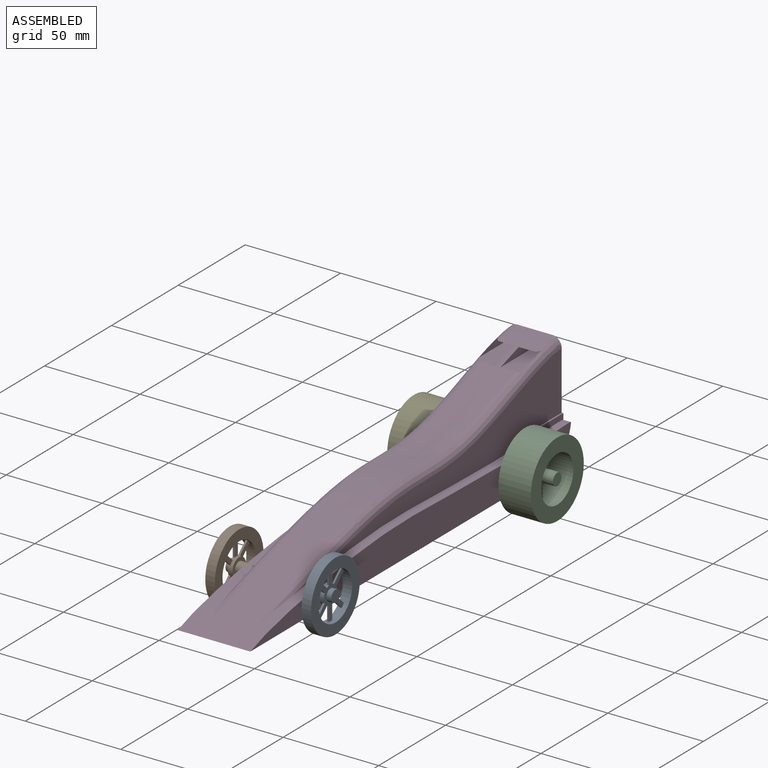
[diagram: assembled view]
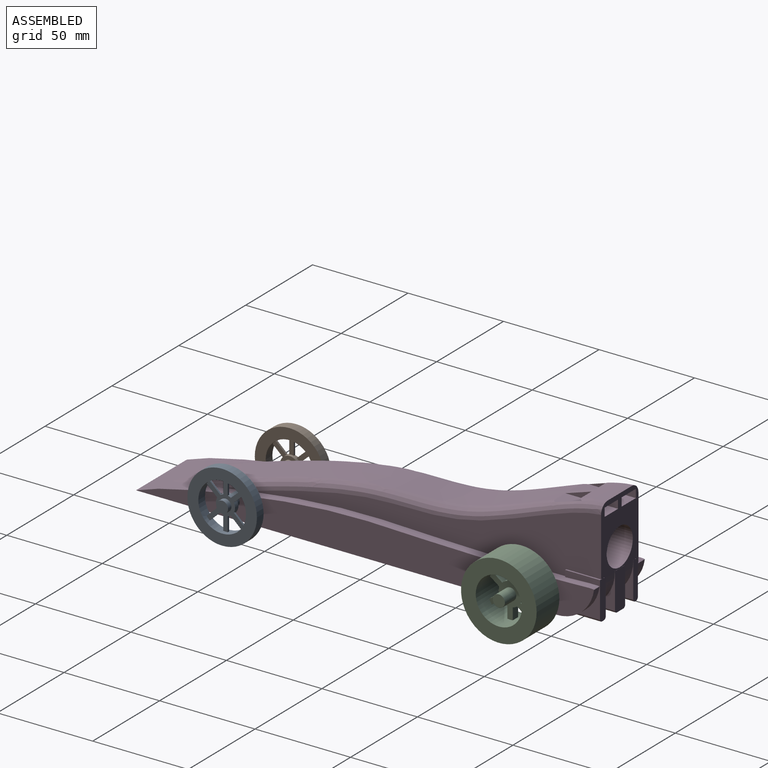
[diagram: assembled view, second angle]
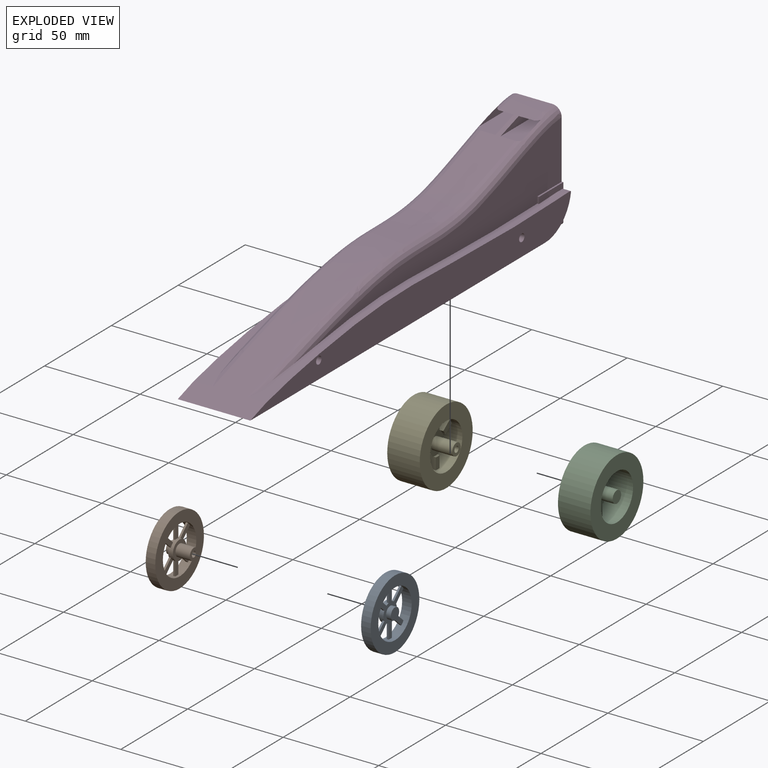
[diagram: exploded view]
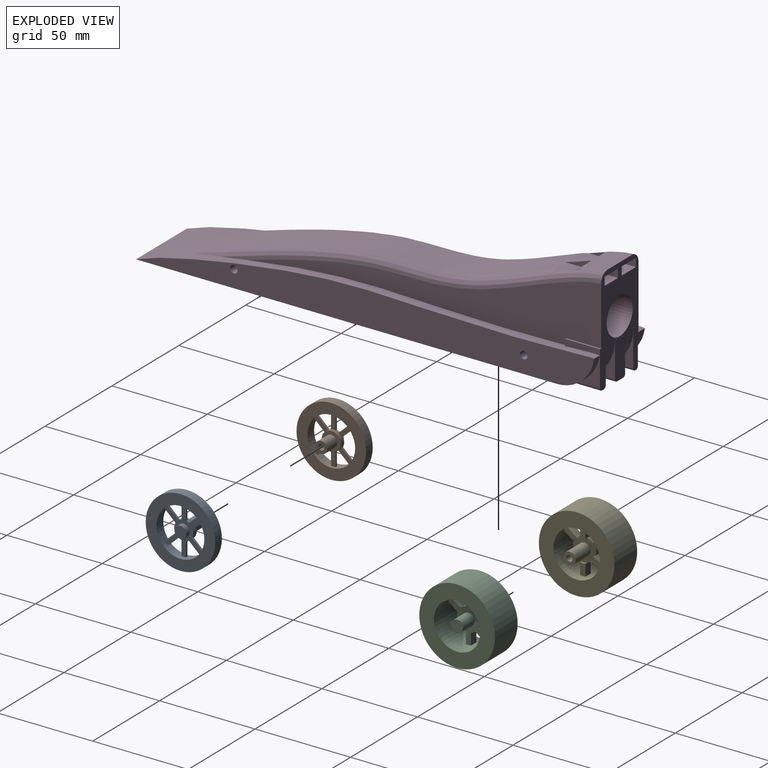
[diagram: exploded view, second angle]
ASSEMBLY  parts=5 mates=4
PART A: 31 faces, bbox 36.4x12.5x36.4 mm
  f0: cylinder r=3.1mm len=7.5mm, axis (0,1,0), area 146.1mm2, adj f2,f5
  f1: cylinder r=1.5mm len=10mm, axis (0,1,0), area 94.2mm2, adj f2,f3
  f2: plane 6.2x6.2mm, normal (0,1,0), area 23.1mm2, adj f0,f1
  f3: plane 3x3mm, normal (0,1,0), area 7.1mm2, adj f1
  f4: cylinder r=5mm len=10mm, axis (0,-1,0), area 64mm2, adj f5,f6,f9,f10,f11,f12,f13,f14
  f5: plane 10x10mm, normal (0,1,0), area 48.3mm2, adj f0,f4
  f6: plane 25.02x19.87mm, normal (0,-1,0), area 156.8mm2, adj f4,f8,f9,f10,f12,f13,f15,f16
  f7: plane 6.18x6.18mm, normal (0,-1,0), area 30mm2, adj f8
  f8: cylinder r=3.09mm len=6.18mm, axis (0,1,0), area 48.5mm2, adj f6,f7
  f9: plane 5.55x5.17mm, normal (0.68,0,-0.73), area 7.6mm2, adj f4,f6,f11,f27
  f10: plane 5.55x5.17mm, normal (-0.68,0,0.73), area 7.6mm2, adj f4,f6,f11,f27
  f11: plane 7.19x6.93mm, normal (0,1,0), area 18.1mm2, adj f4,f9,f10,f27
  f12: plane 7.59x1mm, normal (1,0,0), area 7.6mm2, adj f4,f6,f14,f27
  f13: plane 7.59x1mm, normal (-1,0,0), area 7.6mm2, adj f4,f6,f14,f27
  f14: plane 7.65x2.4mm, normal (0,1,0), area 18.1mm2, adj f4,f12,f13,f27
  f15: plane 5.55x5.17mm, normal (-0.68,0,-0.73), area 7.6mm2, adj f4,f6,f17,f27
  f16: plane 5.55x5.17mm, normal (0.68,0,0.73), area 7.6mm2, adj f4,f6,f17,f27
  f17: plane 7.19x6.93mm, normal (0,1,0), area 18.1mm2, adj f4,f15,f16,f27
  f18: plane 5.55x5.17mm, normal (-0.68,0,0.73), area 7.6mm2, adj f4,f6,f20,f27
  f19: plane 5.55x5.17mm, normal (0.68,0,-0.73), area 7.6mm2, adj f4,f6,f20,f27
  f20: plane 7.19x6.93mm, normal (0,1,0), area 18.1mm2, adj f4,f18,f19,f27
  f21: plane 7.59x1mm, normal (-1,0,0), area 7.6mm2, adj f4,f6,f23,f27
  f22: plane 7.59x1mm, normal (1,0,0), area 7.6mm2, adj f4,f6,f23,f27
  f23: plane 7.65x2.4mm, normal (0,1,0), area 18.1mm2, adj f4,f21,f22,f27
  f24: plane 5.55x5.17mm, normal (-0.68,0,-0.73), area 7.6mm2, adj f4,f6,f26,f27
  f25: plane 5.55x5.17mm, normal (0.68,0,0.73), area 7.6mm2, adj f4,f6,f26,f27
  f26: plane 7.19x6.93mm, normal (0,1,0), area 18.1mm2, adj f4,f24,f25,f27
  f27: cylinder r=12.5mm len=25mm, axis (0,1,0), area 378.3mm2, adj f6,f9,f10,f11,f12,f13,f14,f15
  f28: cylinder r=18.2mm len=36.4mm, axis (0,1,0), area 571.8mm2, adj f29,f30
  f29: plane 36.4x36.4mm, normal (0,-1,0), area 549.7mm2, adj f27,f28
  f30: plane 36.4x36.4mm, normal (0,1,0), area 549.7mm2, adj f27,f28
PART B: same geometry as A
PART C: 42 faces, bbox 39.6x22.4x39.6 mm
  f0: cylinder r=12.1mm len=24.2mm, axis (0,1,0), area 1225mm2, adj f2,f3,f4,f5,f6,f7,f8,f9
  f1: cylinder r=19.8mm len=39.6mm, axis (0,1,0), area 2114.9mm2, adj f2,f3
  f2: plane 39.6x39.6mm, normal (0,-1,0), area 771.7mm2, adj f0,f1
  f3: plane 39.6x39.6mm, normal (0,1,0), area 771.7mm2, adj f0,f1
  f4: plane 6.21x2.8mm, normal (0,1,0), area 17mm2, adj f0,f15,f16,f17
  f5: plane 24.22x21.29mm, normal (0,-1,0), area 186.2mm2, adj f0,f15,f16,f18,f19,f20,f22,f23
  f6: plane 6.21x2.8mm, normal (0,1,0), area 17mm2, adj f0,f19,f20,f21
  f7: plane 7.08x5.81mm, normal (0,1,0), area 17.6mm2, adj f0,f23,f24,f25
  f8: plane 6.48x6.25mm, normal (0,1,0), area 17.6mm2, adj f0,f28,f29,f30
  f9: plane 6.48x5.97mm, normal (0,1,0), area 17mm2, adj f0,f32,f33,f34
  f10: plane 6.85x5.92mm, normal (0,1,0), area 17.5mm2, adj f0,f37,f38,f39
  f11: cylinder r=3.17mm len=11.2mm, axis (0,1,0), area 223.1mm2, adj f13,f26
  f12: cylinder r=1.57mm len=13.9mm, axis (0,1,0), area 137.1mm2, adj f13,f14
  f13: plane 6.34x6.34mm, normal (0,1,0), area 23.8mm2, adj f11,f12
  f14: plane 3.14x3.14mm, normal (0,1,0), area 7.7mm2, adj f12
  f15: plane 6.11x4mm, normal (1,0,0), area 24.4mm2, adj f0,f4,f5,f17,f27
  f16: plane 6.12x4mm, normal (-1,0,0), area 24.5mm2, adj f0,f4,f5,f17,f18
  f17: cylinder r=6.07mm len=2.8mm, axis (0,-1,0), area 3.7mm2, adj f4,f15,f16,f26
  f18: cylinder r=6.07mm len=2.75mm, axis (0,-1,0), area 8.6mm2, adj f5,f16,f26,f34
  f19: plane 6.12x4mm, normal (-1,0,0), area 24.5mm2, adj f0,f5,f6,f21,f35
  f20: plane 6.11x4mm, normal (1,0,0), area 24.4mm2, adj f0,f5,f6,f21,f22
  f21: cylinder r=6.07mm len=2.8mm, axis (0,-1,0), area 3.7mm2, adj f6,f19,f20,f26
  f22: cylinder r=6.07mm len=2.7mm, axis (0,-1,0), area 6.8mm2, adj f5,f20,f26,f38
  f23: plane 5.22x4mm, normal (-0.59,0,0.8), area 25.4mm2, adj f0,f5,f7,f24,f26,f27
  f24: cylinder r=5.88mm len=2.07mm, axis (0,-1,0), area 3.7mm2, adj f7,f23,f25,f26
  f25: plane 5x4mm, normal (0.59,0,-0.8), area 24.4mm2, adj f0,f5,f7,f24,f26,f36
  f26: plane 12.14x12.14mm, normal (0,1,0), area 82.6mm2, adj f11,f17,f18,f21,f22,f23,f24,f25
  f27: cylinder r=6.07mm len=2.7mm, axis (0,-1,0), area 4.9mm2, adj f5,f15,f23,f26
  f28: cylinder r=5.88mm len=2.55mm, axis (0,-1,0), area 3.7mm2, adj f8,f26,f29,f30
  f29: plane 5.22x4mm, normal (-0.59,0,0.8), area 25.4mm2, adj f0,f5,f8,f26,f28,f31
  f30: plane 5x4mm, normal (0.59,0,-0.8), area 24.4mm2, adj f0,f5,f8,f26,f28,f35
  f31: cylinder r=6.07mm len=3.38mm, axis (0,-1,0), area 9.3mm2, adj f5,f26,f29,f32
  f32: plane 4.96x4mm, normal (-0.59,0,-0.8), area 24.7mm2, adj f0,f5,f9,f31,f33
  f33: cylinder r=6.07mm len=2.36mm, axis (0,-1,0), area 3.7mm2, adj f9,f26,f32,f34
  f34: plane 4.88x4mm, normal (0.59,0,0.8), area 24.3mm2, adj f0,f5,f9,f18,f33
  f35: cylinder r=6.07mm len=3.19mm, axis (0,-1,0), area 10.3mm2, adj f5,f19,f26,f30
  f36: cylinder r=6.07mm len=6.03mm, axis (0,-1,0), area 17.1mm2, adj f5,f25,f26,f39
  f37: cylinder r=5.88mm len=2.14mm, axis (0,-1,0), area 3.7mm2, adj f10,f26,f38,f39
  f38: plane 5.12x4mm, normal (-0.59,0,-0.8), area 24.9mm2, adj f0,f5,f10,f22,f26,f37
  f39: plane 5.04x4mm, normal (0.59,0,0.8), area 24.5mm2, adj f0,f5,f10,f26,f36,f37
  f40: plane 6.32x6.32mm, normal (0,-1,0), area 31.4mm2, adj f41
  f41: cylinder r=3.16mm len=8.5mm, axis (0,1,0), area 168.9mm2, adj f5,f40
PART D: 49 faces, bbox 39.4x243.1x59.5 mm
  f0: plane 36.12x28.13mm, normal (0,1,0), area 597.6mm2, adj f1,f2,f3,f9,f10,f14,f15,f16
  f1: plane 185.56x39mm, normal (1,0,0), area 2422.5mm2, adj f0,f5,f23,f36,f38
  f2: cylinder r=19.62mm len=38mm, axis (-1,0,0), area 715.2mm2, adj f0,f4,f5,f6,f7,f8,f9,f25
  f3: extruded ~240x55.55mm, area 4515.6mm2, adj f0,f4,f5,f6,f7,f8,f14,f15
  f4: extruded ~228.08x13.96mm, area 1256.9mm2, adj f2,f3,f8,f9,f22
  f5: extruded ~228.08x13.96mm, area 1194.7mm2, adj f1,f2,f3,f7,f23,f38,f40
  f6: plane 220.38x38mm, normal (0,0,-1), area 8374.3mm2, adj f2,f3,f7,f8
  f7: plane 240.48x18.94mm, normal (1,0,0), area 3345.6mm2, adj f2,f3,f5,f6,f12,f13
  f8: plane 240.48x18.94mm, normal (-1,0,0), area 3345.6mm2, adj f2,f3,f4,f6,f12,f13
  f9: plane 186.03x39mm, normal (-1,0,0), area 2477.9mm2, adj f0,f2,f4,f22
  f10: cylinder r=9.75mm len=45mm, axis (0,1,0), area 2756.7mm2, adj f0,f11
  f11: cone r=0mm half-angle=59deg, axis (0,1,0), area 348.4mm2, adj f10
  f12: cylinder r=2mm len=38mm, axis (1,0,0), area 477.5mm2, adj f7,f8
  f13: cylinder r=2mm len=38mm, axis (1,0,0), area 477.5mm2, adj f7,f8
  f14: plane 15.31x11.99mm, normal (0,0,-1), area 144.7mm2, adj f0,f3,f15,f17,f22
  f15: plane 27.65x4.49mm, normal (-1,0,0), area 92.6mm2, adj f0,f3,f14,f16
  f16: plane 28.71x11.74mm, normal (0,0,1), area 290.7mm2, adj f0,f3,f15,f17,f22
  f17: plane 24.69x4.45mm, normal (1,0,0), area 78mm2, adj f0,f14,f16,f22
  f18: plane 14.78x10.84mm, normal (0,0,-1), area 138.3mm2, adj f0,f3,f19,f21,f23
  f19: plane 26.1x4.5mm, normal (-1,0,0), area 84.8mm2, adj f0,f18,f20,f23
  f20: plane 28.27x10.69mm, normal (0,0,1), area 275.3mm2, adj f0,f3,f19,f21,f23
  f21: plane 27.65x4.49mm, normal (1,0,0), area 92.6mm2, adj f0,f3,f18,f20
  f22: bspline ~235.39x58.18mm, area 1592.3mm2, adj f0,f3,f4,f9,f14,f16,f17
  f23: bspline ~234.05x58.08mm, area 1605.5mm2, adj f0,f1,f3,f5,f18,f19,f20
  f24: plane 3.43x0.05mm, normal (0,0,1), area 0.2mm2, adj f0,f25,f26,f28
  f25: plane 18.59x12.22mm, normal (-1,0,0), area 62.1mm2, adj f0,f2,f24,f28,f47
  f26: plane 18.59x12.22mm, normal (1,0,0), area 62.1mm2, adj f0,f2,f24,f28,f48
  f27: plane 1.24x0.05mm, normal (0,-1,0), area 0mm2, adj f2,f29,f47,f48
  f28: plane 20.07x3.43mm, normal (0,1,0), area 67.9mm2, adj f24,f25,f26,f29,f47,f48
  f29: plane 18.29x0.49mm, normal (0,0,-1), area 8.9mm2, adj f27,f28,f47,f48
  f30: plane 7.62x0.05mm, normal (0,0,1), area 0.4mm2, adj f0,f31,f32,f34
  f31: plane 18.59x12.22mm, normal (-1,0,0), area 62.1mm2, adj f0,f2,f30,f34,f45
  f32: plane 18.59x12.22mm, normal (1,0,0), area 62.1mm2, adj f0,f2,f30,f34,f46
  f33: plane 5.43x0.05mm, normal (0,-1,0), area 0.3mm2, adj f2,f35,f45,f46
  f34: plane 20.07x7.62mm, normal (0,1,0), area 152mm2, adj f30,f31,f32,f35,f45,f46
  f35: plane 18.29x4.68mm, normal (0,0,-1), area 85.6mm2, adj f33,f34,f45,f46
  f36: plane 18.29x4.32mm, normal (0,0,1), area 16.3mm2, adj f0,f1,f37,f38,f39,f40
  f37: plane 18.59x12.22mm, normal (-1,0,0), area 62.1mm2, adj f0,f2,f36,f39,f44
  f38: plane 3.39x0.88mm, normal (0,-1,0), area 3mm2, adj f1,f5,f36,f40
  f39: plane 20.07x4.32mm, normal (0,1,0), area 85.7mm2, adj f36,f37,f40,f42,f43,f44
  f40: plane 19.35x18.59mm, normal (1,0,0), area 117.3mm2, adj f2,f5,f36,f38,f39,f43
  f41: plane 2.13x0.05mm, normal (0,-1,0), area 0.1mm2, adj f2,f42,f43,f44
  f42: plane 18.29x1.38mm, normal (0,0,-1), area 25.2mm2, adj f39,f41,f43,f44
  f43: cylinder r=1.47mm len=18.29mm, axis (0,-1,0), area 36.4mm2, adj f2,f39,f40,f41,f42
  f44: cylinder r=1.47mm len=18.29mm, axis (0,1,0), area 36.4mm2, adj f2,f37,f39,f41,f42
  f45: cylinder r=1.47mm len=18.29mm, axis (0,1,0), area 36.4mm2, adj f2,f31,f33,f34,f35
  f46: cylinder r=1.47mm len=18.29mm, axis (0,-1,0), area 36.4mm2, adj f2,f32,f33,f34,f35
  f47: cylinder r=1.47mm len=18.29mm, axis (0,1,0), area 36.4mm2, adj f2,f25,f27,f28,f29
  f48: cylinder r=1.47mm len=18.29mm, axis (0,-1,0), area 36.4mm2, adj f2,f26,f27,f28,f29
PART E: same geometry as C
PLACE A rot(axis=(0,0,1),90deg) t=(-97.13,-61.47,49.28)mm
PLACE B rot(axis=(0,0,-1),90deg) t=(-127.51,-61.47,49.28)mm
PLACE C rot(axis=(0,0,1),90deg) t=(-92.43,104.81,55.13)mm
PLACE D t=(-112.32,-36.57,40.28)mm
PLACE E rot(axis=(0,0,-1),90deg) t=(-132.21,75.82,55.13)mm
MATE fastened D.f13 <-> C.f0  axis (1,0,0) through (-93.32,90.32,49.28)mm
MATE fastened D.f13 <-> E.f0  axis (-1,0,0) through (-131.32,90.32,49.28)mm
MATE fastened D.f12 <-> B.f0  axis (-1,0,0) through (-131.32,-61.47,49.28)mm
MATE fastened D.f12 <-> A.f0  axis (1,0,0) through (-93.32,-61.47,49.28)mm
